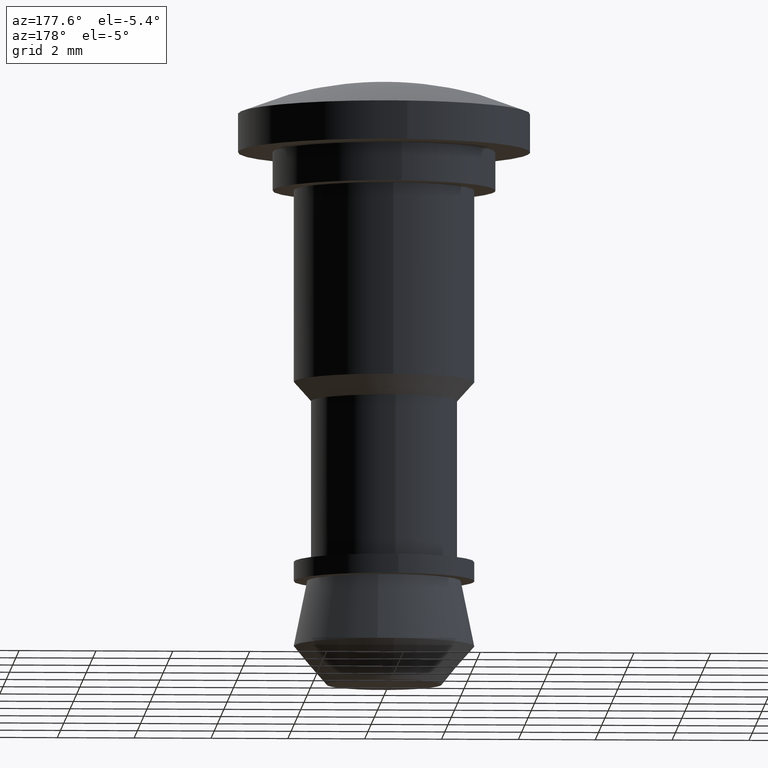
[diagram: clean part render]
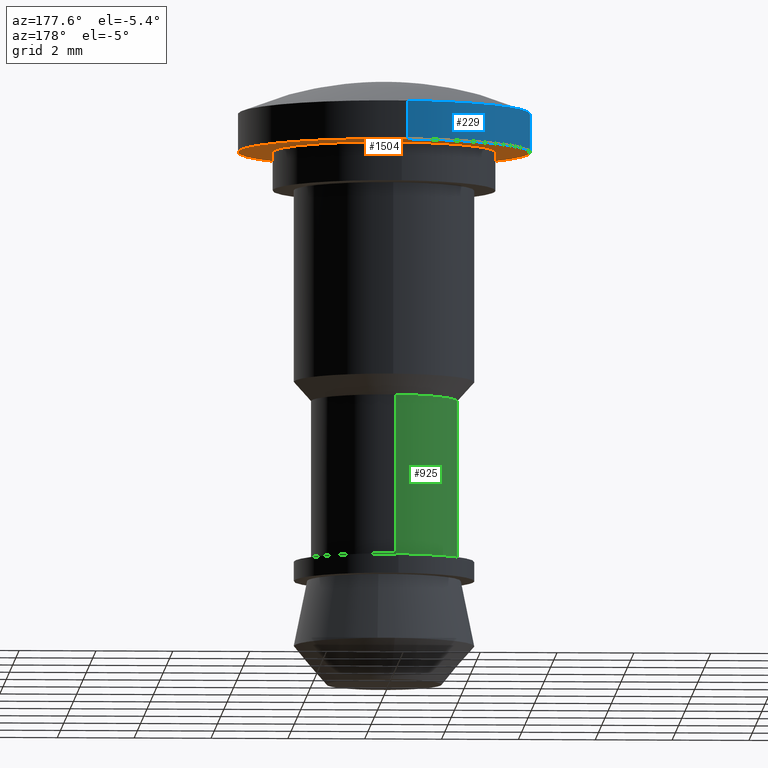
[diagram: same view with three faces highlighted in distinct colors, each labeled with its STEP entity id]
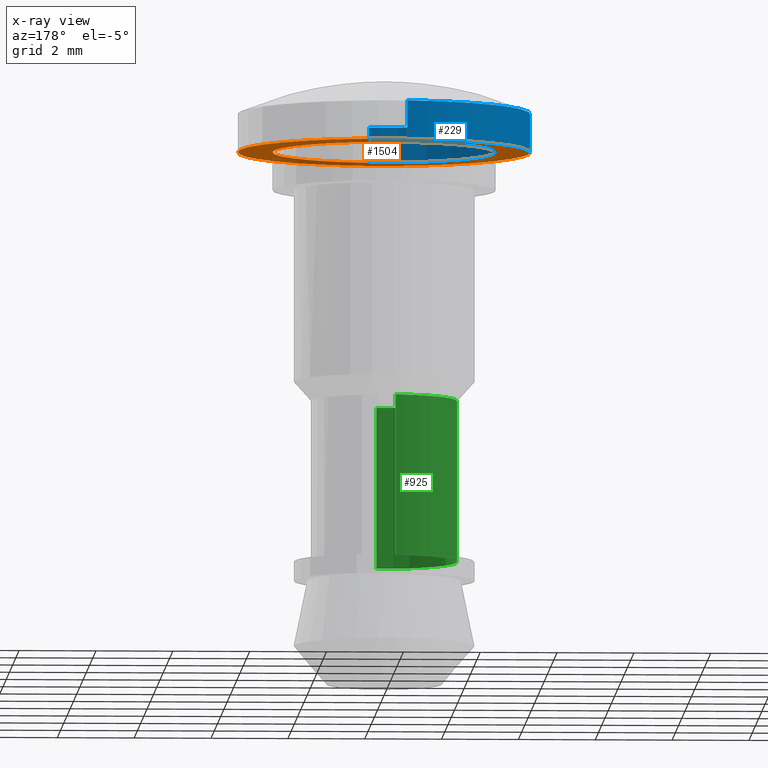
[diagram: x-ray of the same camera — body ghosted, the three highlighted faces saturated]
A machine part, auxiliary view with three faces highlighted in distinct colors.
The next image is the same camera in x-ray (body ghosted, the three faces saturated) — at least one of them is partly hidden behind the body in this view.
Their STEP definitions:

[orange] entity #1504 — the highlighted face is a freeform B-spline surface patch.
#100=CARTESIAN_POINT('',(0.231979685630306,-3.792912525412638,1.0));
#101=VERTEX_POINT('',#100);
#107=CARTESIAN_POINT('',(3.800000000000000,0.0,1.0));
#108=VERTEX_POINT('',#107);
#109=CARTESIAN_POINT('',(3.800000000000000,0.0,1.0));
#110=CARTESIAN_POINT('',(3.800000000000001,-3.574687553101002,1.0));
#111=CARTESIAN_POINT('',(0.231979685630306,-3.792912525412638,1.0));
#119=(BOUNDED_CURVE()B_SPLINE_CURVE(2,(#109,#110,#111),.UNSPECIFIED.,.F.,.U.)B_SPLINE_CURVE_WITH_KNOTS((3,3),(0.500000000000000,0.739333178992815),.UNSPECIFIED.)CURVE()GEOMETRIC_REPRESENTATION_ITEM()RATIONAL_B_SPLINE_CURVE((1.0,0.719603739343753,0.976072506211967))REPRESENTATION_ITEM(''));
#120=EDGE_CURVE('',#108,#101,#119,.T.);
#122=CARTESIAN_POINT('',(-0.448526677692913,3.773436605984780,1.0));
#123=VERTEX_POINT('',#122);
#124=CARTESIAN_POINT('',(-0.448526677692913,3.773436605984780,1.0));
#125=CARTESIAN_POINT('',(-0.225049929629904,3.800000000000000,1.0));
#126=CARTESIAN_POINT('',(0.0,3.800000000000000,1.0));
#127=CARTESIAN_POINT('',(3.800000000000000,3.800000000000000,1.0));
#128=CARTESIAN_POINT('',(3.800000000000000,0.0,1.0));
#136=(BOUNDED_CURVE()B_SPLINE_CURVE(2,(#124,#125,#126,#127,#128),.UNSPECIFIED.,.F.,.U.)B_SPLINE_CURVE_WITH_KNOTS((3,2,3),(0.229562626420732,0.250000000000000,0.500000000000000),.UNSPECIFIED.)CURVE()GEOMETRIC_REPRESENTATION_ITEM()RATIONAL_B_SPLINE_CURVE((0.956027053888334,0.976056127473101,1.0,0.707106781186547,1.0))REPRESENTATION_ITEM(''));
#137=EDGE_CURVE('',#123,#108,#136,.T.);
#181=CARTESIAN_POINT('',(-3.800000000000000,0.0,1.0));
#182=VERTEX_POINT('',#181);
#183=CARTESIAN_POINT('',(-3.800000000000000,0.0,1.0));
#184=CARTESIAN_POINT('',(-3.800000000000000,3.375066273688550,1.0));
#185=CARTESIAN_POINT('',(-0.448526677692913,3.773436605984780,1.0));
#193=(BOUNDED_CURVE()B_SPLINE_CURVE(2,(#183,#184,#185),.UNSPECIFIED.,.F.,.U.)B_SPLINE_CURVE_WITH_KNOTS((3,3),(0.0,0.229562626420732),.UNSPECIFIED.)CURVE()GEOMETRIC_REPRESENTATION_ITEM()RATIONAL_B_SPLINE_CURVE((1.0,0.731050653713447,0.956027053888334))REPRESENTATION_ITEM(''));
#194=EDGE_CURVE('',#182,#123,#193,.T.);
#196=CARTESIAN_POINT('',(0.231979685630306,-3.792912525412638,1.0));
#197=CARTESIAN_POINT('',(0.116098111554051,-3.800000000000000,1.0));
#198=CARTESIAN_POINT('',(0.0,-3.800000000000000,1.0));
#199=CARTESIAN_POINT('',(-3.800000000000000,-3.800000000000000,1.0));
#200=CARTESIAN_POINT('',(-3.800000000000000,0.0,1.0));
#208=(BOUNDED_CURVE()B_SPLINE_CURVE(2,(#196,#197,#198,#199,#200),.UNSPECIFIED.,.F.,.U.)B_SPLINE_CURVE_WITH_KNOTS((3,2,3),(0.739333178992815,0.750000000000000,1.0),.UNSPECIFIED.)CURVE()GEOMETRIC_REPRESENTATION_ITEM()RATIONAL_B_SPLINE_CURVE((0.976072506211967,0.987503041842795,1.0,0.707106781186547,1.0))REPRESENTATION_ITEM(''));
#209=EDGE_CURVE('',#101,#182,#208,.T.);
#256=CARTESIAN_POINT('',(-0.342295539031651,2.879728071180478,0.999999999999931));
#257=VERTEX_POINT('',#256);
#258=CARTESIAN_POINT('',(2.900000000000000,0.0,1.0));
#259=VERTEX_POINT('',#258);
#260=CARTESIAN_POINT('',(-0.342295539031651,2.879728071180477,0.999999999999931));
#261=CARTESIAN_POINT('',(-0.171748056477243,2.900000000000000,1.0));
#262=CARTESIAN_POINT('',(0.0,2.900000000000000,1.0));
#263=CARTESIAN_POINT('',(2.900000000000000,2.900000000000000,1.0));
#264=CARTESIAN_POINT('',(2.900000000000000,0.0,1.0));
#272=(BOUNDED_CURVE()B_SPLINE_CURVE(2,(#260,#261,#262,#263,#264),.UNSPECIFIED.,.F.,.U.)B_SPLINE_CURVE_WITH_KNOTS((3,2,3),(0.229562693092360,0.250000000000000,0.500000000000000),.UNSPECIFIED.)CURVE()GEOMETRIC_REPRESENTATION_ITEM()RATIONAL_B_SPLINE_CURVE((0.956027184567686,0.976056205583771,1.0,0.707106781186548,1.0))REPRESENTATION_ITEM(''));
#273=EDGE_CURVE('',#257,#259,#272,.T.);
#275=CARTESIAN_POINT('',(0.177036030746713,-2.894591204953638,0.999999999999981));
#276=VERTEX_POINT('',#275);
#277=CARTESIAN_POINT('',(2.900000000000000,0.0,1.0));
#278=CARTESIAN_POINT('',(2.900000000000001,-2.728052063900942,1.0));
#279=CARTESIAN_POINT('',(0.177036030746713,-2.894591204953638,0.999999999999981));
#287=(BOUNDED_CURVE()B_SPLINE_CURVE(2,(#277,#278,#279),.UNSPECIFIED.,.F.,.U.)B_SPLINE_CURVE_WITH_KNOTS((3,3),(0.500000000000000,0.739333244430436),.UNSPECIFIED.)CURVE()GEOMETRIC_REPRESENTATION_ITEM()RATIONAL_B_SPLINE_CURVE((1.0,0.719603662678811,0.976072646457550))REPRESENTATION_ITEM(''));
#288=EDGE_CURVE('',#259,#276,#287,.T.);
#355=CARTESIAN_POINT('',(-2.900000000000000,0.0,1.0));
#356=VERTEX_POINT('',#355);
#357=CARTESIAN_POINT('',(-2.900000000000000,0.0,1.0));
#358=CARTESIAN_POINT('',(-2.900000000000001,2.575709495292918,1.0));
#359=CARTESIAN_POINT('',(-0.342295539031651,2.879728071180477,0.999999999999931));
#367=(BOUNDED_CURVE()B_SPLINE_CURVE(2,(#357,#358,#359),.UNSPECIFIED.,.F.,.U.)B_SPLINE_CURVE_WITH_KNOTS((3,3),(0.0,0.229562693092360),.UNSPECIFIED.)CURVE()GEOMETRIC_REPRESENTATION_ITEM()RATIONAL_B_SPLINE_CURVE((1.0,0.731050575602776,0.956027184567686))REPRESENTATION_ITEM(''));
#368=EDGE_CURVE('',#356,#257,#367,.T.);
#402=CARTESIAN_POINT('',(0.177036030746713,-2.894591204953638,0.999999999999981));
#403=CARTESIAN_POINT('',(0.088600639977315,-2.900000000000000,1.0));
#404=CARTESIAN_POINT('',(0.0,-2.900000000000000,1.0));
#405=CARTESIAN_POINT('',(-2.900000000000000,-2.900000000000000,1.0));
#406=CARTESIAN_POINT('',(-2.900000000000000,0.0,1.0));
#414=(BOUNDED_CURVE()B_SPLINE_CURVE(2,(#402,#403,#404,#405,#406),.UNSPECIFIED.,.F.,.U.)B_SPLINE_CURVE_WITH_KNOTS((3,2,3),(0.739333244430436,0.750000000000000,1.0),.UNSPECIFIED.)CURVE()GEOMETRIC_REPRESENTATION_ITEM()RATIONAL_B_SPLINE_CURVE((0.976072646457550,0.987503118507736,1.0,0.707106781186548,1.0))REPRESENTATION_ITEM(''));
#415=EDGE_CURVE('',#276,#356,#414,.T.);
#1487=CARTESIAN_POINT('',(4.179619985269725,-4.179527782020799,1.0));
#1488=CARTESIAN_POINT('',(-4.179620189117610,-4.179527782020799,1.0));
#1489=CARTESIAN_POINT('',(4.179619985269725,4.179550884781115,1.0));
#1490=CARTESIAN_POINT('',(-4.179620189117610,4.179550884781115,1.0));
#1491=B_SPLINE_SURFACE_WITH_KNOTS('',1,1,((#1487,#1489),(#1488,#1490)),.UNSPECIFIED.,.F.,.F.,.U.,(2,2),(2,2),(0.0,8.359240174387335),(0.0,8.359078666801914),.UNSPECIFIED.);
#1492=ORIENTED_EDGE('',*,*,#194,.T.);
#1493=ORIENTED_EDGE('',*,*,#137,.T.);
#1494=ORIENTED_EDGE('',*,*,#120,.T.);
#1495=ORIENTED_EDGE('',*,*,#209,.T.);
#1496=EDGE_LOOP('',(#1492,#1493,#1494,#1495));
#1497=FACE_OUTER_BOUND('',#1496,.T.);
#1498=ORIENTED_EDGE('',*,*,#288,.F.);
#1499=ORIENTED_EDGE('',*,*,#273,.F.);
#1500=ORIENTED_EDGE('',*,*,#368,.F.);
#1501=ORIENTED_EDGE('',*,*,#415,.F.);
#1502=EDGE_LOOP('',(#1498,#1499,#1500,#1501));
#1503=FACE_BOUND('',#1502,.T.);
#1504=ADVANCED_FACE('',(#1497,#1503),#1491,.T.);

[blue] entity #229 — the highlighted face is a freeform B-spline surface patch.
#66=CARTESIAN_POINT('',(-0.448526636085245,3.773436610930404,2.000000000000039));
#67=VERTEX_POINT('',#66);
#85=CARTESIAN_POINT('',(0.231979627528073,-3.792912528966175,2.000000000000092));
#86=VERTEX_POINT('',#85);
#100=CARTESIAN_POINT('',(0.231979685630306,-3.792912525412638,1.0));
#101=VERTEX_POINT('',#100);
#102=CARTESIAN_POINT('',(0.231979627528073,-3.792912528966175,2.000000000000092));
#103=CARTESIAN_POINT('',(0.231979685630306,-3.792912525412638,1.0));
#104=QUASI_UNIFORM_CURVE('',1,(#102,#103),.UNSPECIFIED.,.F.,.U.);
#105=EDGE_CURVE('',#86,#101,#104,.T.);
#122=CARTESIAN_POINT('',(-0.448526677692913,3.773436605984780,1.0));
#123=VERTEX_POINT('',#122);
#139=CARTESIAN_POINT('',(-0.448526636085245,3.773436610930404,2.000000000000039));
#140=CARTESIAN_POINT('',(-0.448526677692913,3.773436605984780,1.0));
#141=QUASI_UNIFORM_CURVE('',1,(#139,#140),.UNSPECIFIED.,.F.,.U.);
#142=EDGE_CURVE('',#67,#123,#141,.T.);
#147=CARTESIAN_POINT('',(0.231984450232457,-3.792912234003093,2.025000000000103));
#148=CARTESIAN_POINT('',(-3.560927783770636,-4.024896684235550,2.025000000000103));
#149=CARTESIAN_POINT('',(-3.792912234003093,-0.231984450232457,2.025000000000103));
#150=CARTESIAN_POINT('',(-4.011987547583605,3.349865265190103,2.025000000000103));
#151=CARTESIAN_POINT('',(-0.448530091695682,3.773436200181931,2.025000000000104));
#152=CARTESIAN_POINT('',(0.231984450232457,-3.792912234003093,0.974374999999997));
#153=CARTESIAN_POINT('',(-3.560927783770636,-4.024896684235550,0.974374999999997));
#154=CARTESIAN_POINT('',(-3.792912234003093,-0.231984450232457,0.974374999999997));
#155=CARTESIAN_POINT('',(-4.011987547583605,3.349865265190103,0.974374999999997));
#156=CARTESIAN_POINT('',(-0.448530091695682,3.773436200181931,0.974374999999997));
#164=(BOUNDED_SURFACE()B_SPLINE_SURFACE(2,1,((#147,#152),(#148,#153),(#149,#154),(#150,#155),(#151,#156)),.UNSPECIFIED.,.F.,.F.,.U.)B_SPLINE_SURFACE_WITH_KNOTS((3,2,3),(2,2),(0.0,6.296046148071044,12.340250450219241),(0.0,1.0),.UNSPECIFIED.)GEOMETRIC_REPRESENTATION_ITEM()RATIONAL_B_SPLINE_SURFACE(((1.0,1.0),(0.707106781186548,0.707106781186548),(1.0,1.0),(0.718822509939086,0.718822509939086),(0.977505800795127,0.977505800795127)))REPRESENTATION_ITEM('')SURFACE());
#165=CARTESIAN_POINT('',(-3.800000000000000,0.0,2.000000000000100));
#166=VERTEX_POINT('',#165);
#167=CARTESIAN_POINT('',(-3.800000000000000,0.0,2.000000000000100));
#168=CARTESIAN_POINT('',(-3.800000000000000,3.375066311165575,2.000000000000100));
#169=CARTESIAN_POINT('',(-0.448526636085245,3.773436610930405,2.000000000000039));
#177=(BOUNDED_CURVE()B_SPLINE_CURVE(2,(#167,#168,#169),.UNSPECIFIED.,.F.,.U.)B_SPLINE_CURVE_WITH_KNOTS((3,3),(0.0,0.229562628284241),.UNSPECIFIED.)CURVE()GEOMETRIC_REPRESENTATION_ITEM()RATIONAL_B_SPLINE_CURVE((1.0,0.731050651530211,0.956027057540893))REPRESENTATION_ITEM(''));
#178=EDGE_CURVE('',#166,#67,#177,.T.);
#179=ORIENTED_EDGE('',*,*,#178,.T.);
#180=ORIENTED_EDGE('',*,*,#142,.T.);
#181=CARTESIAN_POINT('',(-3.800000000000000,0.0,1.0));
#182=VERTEX_POINT('',#181);
#183=CARTESIAN_POINT('',(-3.800000000000000,0.0,1.0));
#184=CARTESIAN_POINT('',(-3.800000000000000,3.375066273688550,1.0));
#185=CARTESIAN_POINT('',(-0.448526677692913,3.773436605984780,1.0));
#193=(BOUNDED_CURVE()B_SPLINE_CURVE(2,(#183,#184,#185),.UNSPECIFIED.,.F.,.U.)B_SPLINE_CURVE_WITH_KNOTS((3,3),(0.0,0.229562626420732),.UNSPECIFIED.)CURVE()GEOMETRIC_REPRESENTATION_ITEM()RATIONAL_B_SPLINE_CURVE((1.0,0.731050653713447,0.956027053888334))REPRESENTATION_ITEM(''));
#194=EDGE_CURVE('',#182,#123,#193,.T.);
#195=ORIENTED_EDGE('',*,*,#194,.F.);
#196=CARTESIAN_POINT('',(0.231979685630306,-3.792912525412638,1.0));
#197=CARTESIAN_POINT('',(0.116098111554051,-3.800000000000000,1.0));
#198=CARTESIAN_POINT('',(0.0,-3.800000000000000,1.0));
#199=CARTESIAN_POINT('',(-3.800000000000000,-3.800000000000000,1.0));
#200=CARTESIAN_POINT('',(-3.800000000000000,0.0,1.0));
#208=(BOUNDED_CURVE()B_SPLINE_CURVE(2,(#196,#197,#198,#199,#200),.UNSPECIFIED.,.F.,.U.)B_SPLINE_CURVE_WITH_KNOTS((3,2,3),(0.739333178992815,0.750000000000000,1.0),.UNSPECIFIED.)CURVE()GEOMETRIC_REPRESENTATION_ITEM()RATIONAL_B_SPLINE_CURVE((0.976072506211967,0.987503041842795,1.0,0.707106781186547,1.0))REPRESENTATION_ITEM(''));
#209=EDGE_CURVE('',#101,#182,#208,.T.);
#210=ORIENTED_EDGE('',*,*,#209,.F.);
#211=ORIENTED_EDGE('',*,*,#105,.F.);
#212=CARTESIAN_POINT('',(0.231979627528073,-3.792912528966174,2.000000000000092));
#213=CARTESIAN_POINT('',(0.116098082421484,-3.799999999999999,2.000000000000100));
#214=CARTESIAN_POINT('',(0.0,-3.800000000000000,2.000000000000100));
#215=CARTESIAN_POINT('',(-3.800000000000000,-3.800000000000000,2.000000000000100));
#216=CARTESIAN_POINT('',(-3.800000000000000,0.0,2.000000000000100));
#224=(BOUNDED_CURVE()B_SPLINE_CURVE(2,(#212,#213,#214,#215,#216),.UNSPECIFIED.,.F.,.U.)B_SPLINE_CURVE_WITH_KNOTS((3,2,3),(0.739333181635997,0.750000000000000,1.0),.UNSPECIFIED.)CURVE()GEOMETRIC_REPRESENTATION_ITEM()RATIONAL_B_SPLINE_CURVE((0.976072511876820,0.987503044939475,1.0,0.707106781186547,1.0))REPRESENTATION_ITEM(''));
#225=EDGE_CURVE('',#86,#166,#224,.T.);
#226=ORIENTED_EDGE('',*,*,#225,.T.);
#227=EDGE_LOOP('',(#179,#180,#195,#210,#211,#226));
#228=FACE_OUTER_BOUND('',#227,.T.);
#229=ADVANCED_FACE('',(#228),#164,.T.);

[green] entity #925 — the highlighted face is a freeform B-spline surface patch.
#662=CARTESIAN_POINT('',(-0.224265045859108,1.886718100089627,-5.499999999999900));
#663=VERTEX_POINT('',#662);
#681=CARTESIAN_POINT('',(-1.900000000000000,0.0,-5.499999999999900));
#682=VERTEX_POINT('',#681);
#683=CARTESIAN_POINT('',(-1.900000000000000,0.0,-5.499999999999900));
#684=CARTESIAN_POINT('',(-1.900000000000000,1.687531599287302,-5.499999999999900));
#685=CARTESIAN_POINT('',(-0.224265045859108,1.886718100089627,-5.499999999999900));
#693=(BOUNDED_CURVE()B_SPLINE_CURVE(2,(#683,#684,#685),.UNSPECIFIED.,.F.,.U.)B_SPLINE_CURVE_WITH_KNOTS((3,3),(0.0,0.229562473513626),.UNSPECIFIED.)CURVE()GEOMETRIC_REPRESENTATION_ITEM()RATIONAL_B_SPLINE_CURVE((1.0,0.731050832855265,0.956026754183930))REPRESENTATION_ITEM(''));
#694=EDGE_CURVE('',#682,#663,#693,.T.);
#696=CARTESIAN_POINT('',(0.115992225165436,-1.896456116998537,-5.499999999999899));
#697=VERTEX_POINT('',#696);
#698=CARTESIAN_POINT('',(0.115992225165435,-1.896456116998538,-5.499999999999900));
#699=CARTESIAN_POINT('',(0.058050250316664,-1.900000000000001,-5.499999999999900));
#700=CARTESIAN_POINT('',(0.0,-1.900000000000000,-5.499999999999900));
#701=CARTESIAN_POINT('',(-1.900000000000000,-1.900000000000000,-5.499999999999900));
#702=CARTESIAN_POINT('',(-1.900000000000000,0.0,-5.499999999999900));
#710=(BOUNDED_CURVE()B_SPLINE_CURVE(2,(#698,#699,#700,#701,#702),.UNSPECIFIED.,.F.,.U.)B_SPLINE_CURVE_WITH_KNOTS((3,2,3),(0.739332962233014,0.750000000000000,1.0),.UNSPECIFIED.)CURVE()GEOMETRIC_REPRESENTATION_ITEM()RATIONAL_B_SPLINE_CURVE((0.976072041654011,0.987502787892891,1.0,0.707106781186547,1.0))REPRESENTATION_ITEM(''));
#711=EDGE_CURVE('',#697,#682,#710,.T.);
#824=CARTESIAN_POINT('',(0.115992225165436,-1.896456116998537,-9.700000000000001));
#825=VERTEX_POINT('',#824);
#826=CARTESIAN_POINT('',(0.115992225165436,-1.896456116998537,-5.499999999999899));
#827=CARTESIAN_POINT('',(0.115992225165436,-1.896456116998537,-9.700000000000001));
#828=QUASI_UNIFORM_CURVE('',1,(#826,#827),.UNSPECIFIED.,.F.,.U.);
#829=EDGE_CURVE('',#697,#825,#828,.T.);
#846=CARTESIAN_POINT('',(-0.224265045859108,1.886718100089627,-9.700000000000001));
#847=VERTEX_POINT('',#846);
#863=CARTESIAN_POINT('',(-0.224265045859108,1.886718100089627,-5.499999999999900));
#864=CARTESIAN_POINT('',(-0.224265045859108,1.886718100089627,-9.700000000000001));
#865=QUASI_UNIFORM_CURVE('',1,(#863,#864),.UNSPECIFIED.,.F.,.U.);
#866=EDGE_CURVE('',#663,#847,#865,.T.);
#871=CARTESIAN_POINT('',(0.115992225116228,-1.896456117001547,-5.394999999999896));
#872=CARTESIAN_POINT('',(-1.780463891885319,-2.012448342117775,-5.394999999999895));
#873=CARTESIAN_POINT('',(-1.896456117001547,-0.115992225116228,-5.394999999999896));
#874=CARTESIAN_POINT('',(-2.005993773791802,1.674932632595051,-5.394999999999895));
#875=CARTESIAN_POINT('',(-0.224265045847841,1.886718100090966,-5.394999999999897));
#876=CARTESIAN_POINT('',(0.115992225116228,-1.896456117001547,-9.807625000000005));
#877=CARTESIAN_POINT('',(-1.780463891885319,-2.012448342117775,-9.807625000000005));
#878=CARTESIAN_POINT('',(-1.896456117001547,-0.115992225116228,-9.807625000000005));
#879=CARTESIAN_POINT('',(-2.005993773791802,1.674932632595051,-9.807625000000005));
#880=CARTESIAN_POINT('',(-0.224265045847841,1.886718100090966,-9.807625000000007));
#888=(BOUNDED_SURFACE()B_SPLINE_SURFACE(2,1,((#871,#876),(#872,#877),(#873,#878),(#874,#879),(#875,#880)),.UNSPECIFIED.,.F.,.F.,.U.)B_SPLINE_SURFACE_WITH_KNOTS((3,2,3),(2,2),(0.0,3.148023074035522,6.170125225109622),(0.0,4.412625000000110),.UNSPECIFIED.)GEOMETRIC_REPRESENTATION_ITEM()RATIONAL_B_SPLINE_SURFACE(((1.0,1.0),(0.707106781186548,0.707106781186548),(1.0,1.0),(0.718822509939086,0.718822509939086),(0.977505800795127,0.977505800795127)))REPRESENTATION_ITEM('')SURFACE());
#889=ORIENTED_EDGE('',*,*,#694,.T.);
#890=ORIENTED_EDGE('',*,*,#866,.T.);
#891=CARTESIAN_POINT('',(-1.900000000000000,0.0,-9.700000000000001));
#892=VERTEX_POINT('',#891);
#893=CARTESIAN_POINT('',(-1.900000000000000,0.0,-9.700000000000001));
#894=CARTESIAN_POINT('',(-1.900000000000000,1.687531599287304,-9.699999999999999));
#895=CARTESIAN_POINT('',(-0.224265045859108,1.886718100089627,-9.700000000000001));
#903=(BOUNDED_CURVE()B_SPLINE_CURVE(2,(#893,#894,#895),.UNSPECIFIED.,.F.,.U.)B_SPLINE_CURVE_WITH_KNOTS((3,3),(0.0,0.229562473513626),.UNSPECIFIED.)CURVE()GEOMETRIC_REPRESENTATION_ITEM()RATIONAL_B_SPLINE_CURVE((1.0,0.731050832855265,0.956026754183930))REPRESENTATION_ITEM(''));
#904=EDGE_CURVE('',#892,#847,#903,.T.);
#905=ORIENTED_EDGE('',*,*,#904,.F.);
#906=CARTESIAN_POINT('',(0.115992225165435,-1.896456116998538,-9.700000000000001));
#907=CARTESIAN_POINT('',(0.058050250316664,-1.900000000000001,-9.700000000000001));
#908=CARTESIAN_POINT('',(0.0,-1.900000000000000,-9.700000000000001));
#909=CARTESIAN_POINT('',(-1.900000000000000,-1.900000000000000,-9.700000000000001));
#910=CARTESIAN_POINT('',(-1.900000000000000,0.0,-9.700000000000001));
#918=(BOUNDED_CURVE()B_SPLINE_CURVE(2,(#906,#907,#908,#909,#910),.UNSPECIFIED.,.F.,.U.)B_SPLINE_CURVE_WITH_KNOTS((3,2,3),(0.739332962233014,0.750000000000000,1.0),.UNSPECIFIED.)CURVE()GEOMETRIC_REPRESENTATION_ITEM()RATIONAL_B_SPLINE_CURVE((0.976072041654011,0.987502787892891,1.0,0.707106781186547,1.0))REPRESENTATION_ITEM(''));
#919=EDGE_CURVE('',#825,#892,#918,.T.);
#920=ORIENTED_EDGE('',*,*,#919,.F.);
#921=ORIENTED_EDGE('',*,*,#829,.F.);
#922=ORIENTED_EDGE('',*,*,#711,.T.);
#923=EDGE_LOOP('',(#889,#890,#905,#920,#921,#922));
#924=FACE_OUTER_BOUND('',#923,.T.);
#925=ADVANCED_FACE('',(#924),#888,.T.);